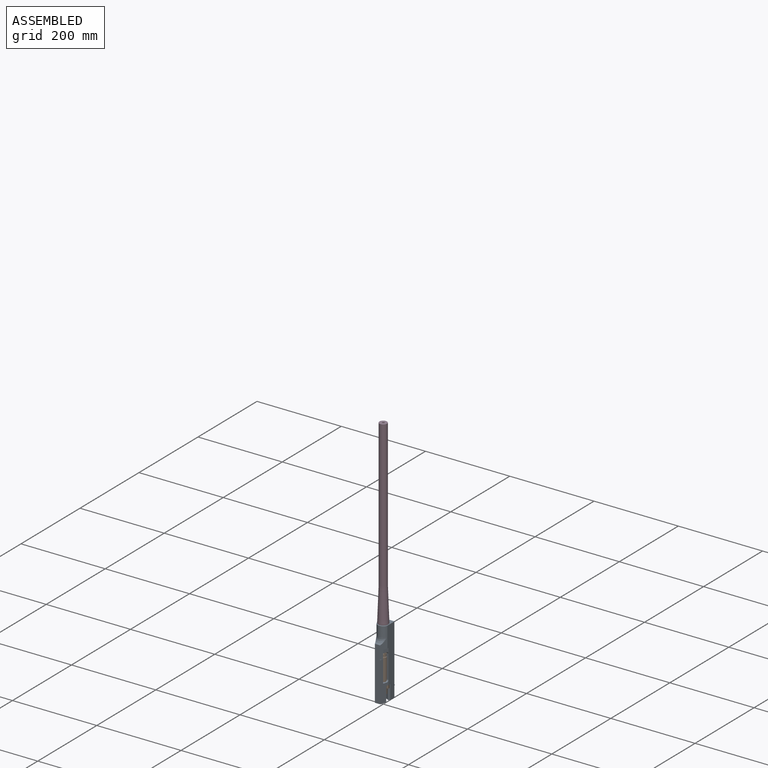
[diagram: assembled view]
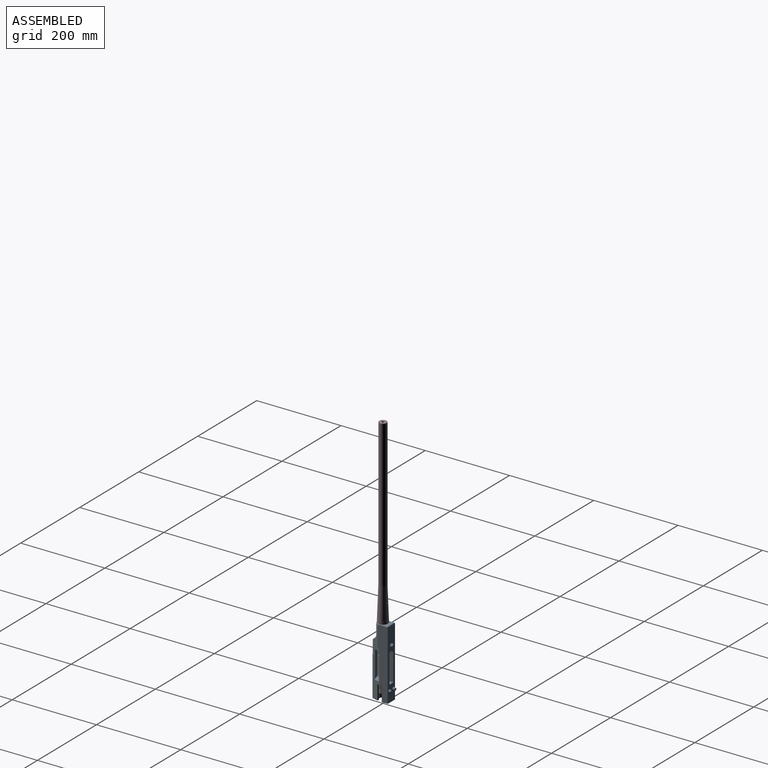
[diagram: assembled view, second angle]
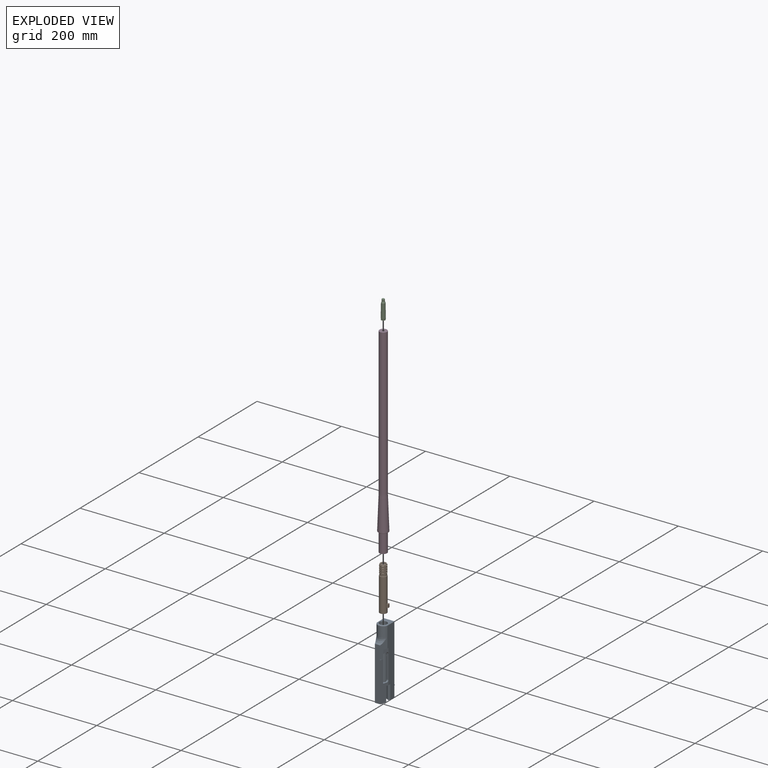
[diagram: exploded view]
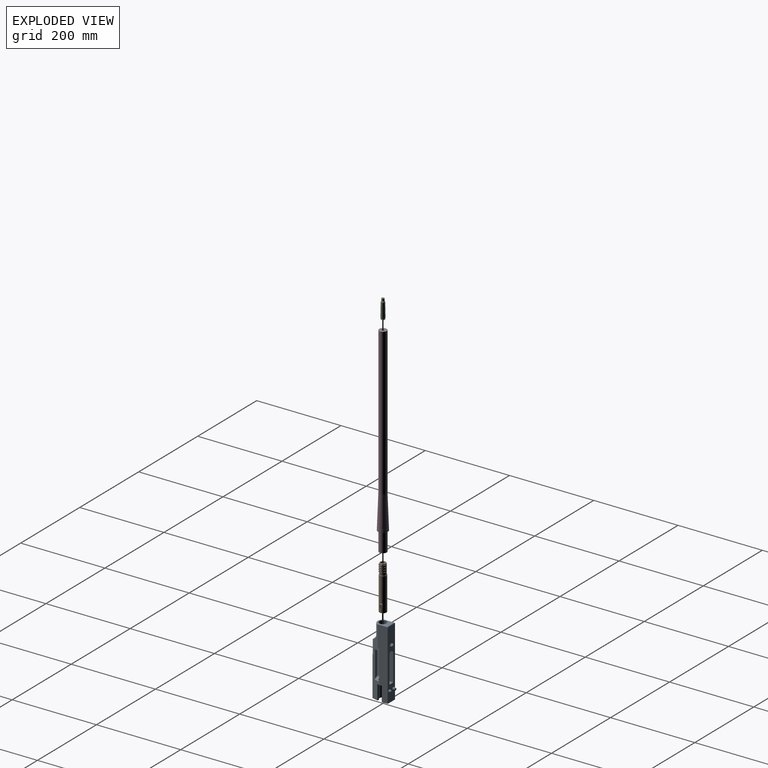
[diagram: exploded view, second angle]
ASSEMBLY  parts=4 mates=3
PART A: 166 faces, bbox 56.1x166.9x55.5 mm
  f0: cylinder r=7.5mm len=4mm, axis (0,-1,0), area 7.6mm2, adj f31,f55,f78,f121
  f1: cylinder r=7.5mm len=10.52mm, axis (0,-1,0), area 46.6mm2, adj f32,f56,f120,f124
  f2: cylinder r=7.5mm len=4mm, axis (0,-1,0), area 15.2mm2, adj f33,f57,f123,f127
  f3: cylinder r=7.5mm len=4mm, axis (0,-1,0), area 15.2mm2, adj f34,f58,f118,f126
  f4: cone r=8.7mm half-angle=60deg, axis (0,-1,0), area 4.7mm2, adj f9,f22,f64,f101,f138,f147
  f5: cone r=8.7mm half-angle=60deg, axis (0,-1,0), area 6.1mm2, adj f10,f100,f145,f146
  f6: cone r=8.7mm half-angle=60deg, axis (0,-1,0), area 6mm2, adj f11,f100,f106,f143
  f7: cone r=8.7mm half-angle=60deg, axis (0,-1,0), area 6.1mm2, adj f12,f100,f141,f142
  f8: cone r=8.7mm half-angle=60deg, axis (0,-1,0), area 6.1mm2, adj f61,f100,f139,f140
  f9: cylinder r=7.5mm len=3.26mm, axis (0,-1,0), area 7.6mm2, adj f4,f47,f138,f147
  f10: cylinder r=7.5mm len=3.76mm, axis (0,-1,0), area 7.6mm2, adj f5,f48,f145,f146
  f11: cylinder r=7.5mm len=10.52mm, axis (0,-1,0), area 19.6mm2, adj f6,f49,f60,f106,f107,f143,f144
  f12: cylinder r=7.5mm len=3.76mm, axis (0,-1,0), area 7.6mm2, adj f7,f50,f141,f142
  f13: cylinder r=7.5mm len=2.55mm, axis (0,-1,0), area 4.5mm2, adj f23,f27,f63,f163
  f14: cylinder r=7.5mm len=10.52mm, axis (0,-1,0), area 23.3mm2, adj f24,f28,f162,f164
  f15: cylinder r=7.5mm len=3.76mm, axis (0,-1,0), area 7.6mm2, adj f25,f29,f160,f161
  f16: cylinder r=7.5mm len=3.26mm, axis (0,-1,0), area 7.6mm2, adj f26,f30,f158,f159
  f17: cylinder r=7.5mm len=3.26mm, axis (0,-1,0), area 9.5mm2, adj f21,f39,f148,f157
  f18: cylinder r=7.5mm len=3.76mm, axis (0,-1,0), area 9.5mm2, adj f21,f40,f155,f156
  f19: cylinder r=7.5mm len=10.52mm, axis (0,-1,0), area 29.1mm2, adj f21,f41,f153,f154
  f20: cylinder r=7.5mm len=3.76mm, axis (0,-1,0), area 9.5mm2, adj f21,f42,f151,f152
  f21: plane 18x18mm, normal (0,1,0), area 53.5mm2, adj f17,f18,f19,f20,f62,f73,f100,f148
  f22: plane 10.69x8.81mm, normal (0,-1,0), area 58.7mm2, adj f4,f63,f64,f68,f75,f94,f100,f147
  f23: cone r=8.7mm half-angle=60deg, axis (0,1,0), area 4.3mm2, adj f13,f63,f100,f163
  f24: cone r=8.7mm half-angle=60deg, axis (0,1,0), area 17.9mm2, adj f14,f100,f162,f164
  f25: cone r=8.7mm half-angle=60deg, axis (0,1,0), area 6.1mm2, adj f15,f100,f160,f161
  f26: cone r=8.7mm half-angle=60deg, axis (0,1,0), area 6.1mm2, adj f16,f100,f158,f159
  f27: cone r=8.7mm half-angle=60deg, axis (0,-1,0), area 3.1mm2, adj f13,f63,f78,f100,f163
  f28: cone r=8.7mm half-angle=60deg, axis (0,-1,0), area 17.9mm2, adj f14,f100,f162,f164
  f29: cone r=8.7mm half-angle=60deg, axis (0,-1,0), area 6.1mm2, adj f15,f100,f160,f161
  f30: cone r=8.7mm half-angle=60deg, axis (0,-1,0), area 6.1mm2, adj f16,f100,f158,f159
  f31: cone r=8.7mm half-angle=60deg, axis (0,1,0), area 3.1mm2, adj f0,f78,f100,f121
  f32: cone r=8.7mm half-angle=60deg, axis (0,1,0), area 17.9mm2, adj f1,f100,f120,f124
  f33: cone r=8.7mm half-angle=60deg, axis (0,1,0), area 6.1mm2, adj f2,f100,f123,f127
  f34: cone r=8.7mm half-angle=60deg, axis (0,1,0), area 6.1mm2, adj f3,f100,f118,f126
  f35: cone r=8.7mm half-angle=60deg, axis (0,1,0), area 6.1mm2, adj f43,f100,f128,f137
  f36: cone r=8.7mm half-angle=60deg, axis (0,1,0), area 6.1mm2, adj f44,f100,f135,f136
  f37: cone r=8.7mm half-angle=60deg, axis (0,1,0), area 17.9mm2, adj f45,f100,f133,f134
  f38: cone r=8.7mm half-angle=60deg, axis (0,1,0), area 6.1mm2, adj f46,f100,f131,f132
  f39: cone r=8.7mm half-angle=60deg, axis (0,-1,0), area 6.1mm2, adj f17,f100,f148,f157
  f40: cone r=8.7mm half-angle=60deg, axis (0,-1,0), area 6.1mm2, adj f18,f100,f155,f156
  f41: cone r=8.7mm half-angle=60deg, axis (0,-1,0), area 17.9mm2, adj f19,f100,f153,f154
  f42: cone r=8.7mm half-angle=60deg, axis (0,-1,0), area 6.1mm2, adj f20,f100,f151,f152
  f43: cylinder r=7.5mm len=3.26mm, axis (0,-1,0), area 7.6mm2, adj f35,f51,f128,f137
  f44: cylinder r=7.5mm len=3.76mm, axis (0,-1,0), area 7.6mm2, adj f36,f52,f135,f136
  f45: cylinder r=7.5mm len=10.52mm, axis (0,-1,0), area 23.3mm2, adj f37,f53,f133,f134
  f46: cylinder r=7.5mm len=3.76mm, axis (0,-1,0), area 7.6mm2, adj f38,f54,f131,f132
  f47: cone r=8.7mm half-angle=60deg, axis (0,1,0), area 6.1mm2, adj f9,f100,f138,f147
  f48: cone r=8.7mm half-angle=60deg, axis (0,1,0), area 6.1mm2, adj f10,f100,f145,f146
  f49: cone r=8.7mm half-angle=60deg, axis (0,1,0), area 17.9mm2, adj f11,f100,f143,f144
  f50: cone r=8.7mm half-angle=60deg, axis (0,1,0), area 6.1mm2, adj f12,f100,f141,f142
  f51: cone r=8.7mm half-angle=60deg, axis (0,-1,0), area 6.1mm2, adj f43,f100,f128,f137
  f52: cone r=8.7mm half-angle=60deg, axis (0,-1,0), area 6.1mm2, adj f44,f100,f135,f136
  f53: cone r=8.7mm half-angle=60deg, axis (0,-1,0), area 17.9mm2, adj f45,f100,f133,f134
  f54: cone r=8.7mm half-angle=60deg, axis (0,-1,0), area 6.1mm2, adj f46,f100,f131,f132
  f55: plane 2.4x1.24mm, normal (0,-1,0), area 2.2mm2, adj f0,f59,f78,f121
  f56: plane 12.31x3.15mm, normal (0,-1,0), area 12.7mm2, adj f1,f59,f120,f124
  f57: plane 4.8x1.24mm, normal (0,-1,0), area 4.3mm2, adj f2,f59,f123,f127
  f58: plane 3.71x2.4mm, normal (0,-1,0), area 2mm2, adj f3,f118,f126,f165
  f59: cylinder r=8.5mm len=95.5mm, axis (0,-1,0), area 3975.4mm2, adj f55,f56,f57,f74,f76,f77,f78,f79
  f60: cone r=8.7mm half-angle=60deg, axis (0,-1,0), area 6mm2, adj f11,f100,f106,f144
  f61: cylinder r=7.5mm len=3.26mm, axis (0,-1,0), area 7.6mm2, adj f8,f104,f139,f140
  f62: cylinder r=7.5mm len=3.26mm, axis (0,-1,0), area 9.5mm2, adj f21,f102,f149,f150
  f63: cylinder r=5mm len=5.38mm, axis (-1,0,0), area 31.6mm2, adj f13,f22,f23,f27,f68,f78,f100
  f64: cylinder r=5mm len=9.88mm, axis (-0.17,0,0.98), area 57.8mm2, adj f4,f22,f75,f76,f100,f101
  f65: plane 128.45x14.93mm, normal (0,0,1), area 1611.7mm2, adj f67,f71,f94,f96,f98,f116
  f66: plane 31.09x23mm, normal (0,1,0), area 409.1mm2, adj f73,f108,f109,f110,f111,f112,f113
  f67: plane 95.58x20.58mm, normal (0.96,0,0.27), area 1053.6mm2, adj f65,f70,f74,f75,f77,f79,f92,f96
  f68: plane 13.58x12.97mm, normal (0.96,0,0.27), area 108.4mm2, adj f22,f63,f70,f94,f95
  f69: plane 164x25mm, normal (0,0,-1), area 3021.7mm2, adj f70,f72,f81,f83,f85,f87,f88,f89
  f70: plane 164x24mm, normal (1,0,0), area 3268.2mm2, adj f67,f68,f69,f74,f78,f80,f94,f95
  f71: plane 165.53x17.53mm, normal (-0.93,0,0.38), area 2298.4mm2, adj f65,f72,f97,f98,f113,f116
  f72: plane 164x24mm, normal (-1,0,0), area 3936mm2, adj f69,f71,f111,f116
  f73: cylinder r=9mm len=45mm, axis (0,1,0), area 2544.7mm2, adj f21,f66
  f74: plane 11.47x5.3mm, normal (0,-1,0), area 42.9mm2, adj f59,f67,f70,f79,f80
  f75: cylinder r=15.86mm len=65mm, axis (0,1,0), area 780.5mm2, adj f22,f64,f67,f76,f77,f93,f94,f96
  f76: plane 55x7.24mm, normal (0.98,0,0.17), area 403.2mm2, adj f59,f64,f75,f93,f100,f117
  f77: plane 10.69x8.81mm, normal (0,1,0), area 58.6mm2, adj f59,f67,f75,f92,f93
  f78: plane 55x5mm, normal (0,0,1), area 223.9mm2, adj f0,f27,f31,f55,f59,f63,f70,f92
  f79: plane 35x3.78mm, normal (0.26,0,-0.97), area 136.9mm2, adj f59,f67,f74,f116
  f80: plane 35x5.3mm, normal (0.26,0,0.97), area 192mm2, adj f59,f70,f74,f116
  f81: cone r=4mm half-angle=15deg, axis (0,0,1), area 108.3mm2, adj f69,f82
  f82: plane 5.32x5.32mm, normal (0,0,-1), area 22.2mm2, adj f81
  f83: cone r=4mm half-angle=15deg, axis (0,0,1), area 108.3mm2, adj f69,f84
  f84: plane 5.32x5.32mm, normal (0,0,-1), area 22.2mm2, adj f83
  f85: cone r=5mm half-angle=15deg, axis (0,0,1), area 140.8mm2, adj f69,f86
  f86: plane 7.32x7.32mm, normal (0,0,-1), area 42.1mm2, adj f85
  f87: plane 3.46x1.11mm, normal (0,-1,0), area 1.3mm2, adj f69,f106,f114,f115
  f88: plane 65x10mm, normal (-1,0,0), area 650mm2, adj f69,f89,f91,f114
  f89: plane 13x10mm, normal (0,1,0), area 130mm2, adj f69,f88,f90,f91
  f90: plane 65x10mm, normal (1,0,0), area 650mm2, adj f69,f89,f91,f115
  f91: plane 69.56x13.45mm, normal (0,0,-1), area 871.1mm2, adj f88,f89,f90,f106,f114,f115
  f92: cylinder r=5mm len=5.63mm, axis (1,0,0), area 32.4mm2, adj f59,f67,f77,f78
  f93: cylinder r=5mm len=9.71mm, axis (0.17,0,-0.98), area 61mm2, adj f59,f75,f76,f77
  f94: plane 70.53x17.53mm, normal (0.93,0,0.38), area 467.2mm2, adj f22,f65,f68,f70,f75,f95,f96,f97
  f95: plane 12.39x3.41mm, normal (0,-1,0), area 6.8mm2, adj f68,f70,f94
  f96: plane 6.87x2.89mm, normal (0,1,0), area 3.8mm2, adj f65,f67,f75,f94
  f97: cylinder r=13.09mm len=24.25mm, axis (0,1,0), area 744.3mm2, adj f71,f94,f98,f112
  f98: bspline ~54.18x25.13mm, area 366.9mm2, adj f65,f71,f94,f97
  f99: cone r=8.7mm half-angle=60deg, axis (0,1,0), area 6.1mm2, adj f100,f103,f129,f130
  f100: cylinder r=8.7mm len=25mm, axis (0,1,0), area 617mm2, adj f5,f6,f7,f8,f21,f22,f23,f24
  f101: cylinder r=8.7mm len=0.2mm, axis (0,1,0), area 0mm2, adj f4,f64,f100
  f102: cone r=8.7mm half-angle=60deg, axis (0,-1,0), area 6.1mm2, adj f62,f100,f149,f150
  f103: cylinder r=7.5mm len=3.26mm, axis (0,-1,0), area 7.6mm2, adj f99,f105,f129,f130
  f104: cone r=8.7mm half-angle=60deg, axis (0,1,0), area 6.1mm2, adj f61,f100,f139,f140
  f105: cone r=8.7mm half-angle=60deg, axis (0,-1,0), area 6.1mm2, adj f100,f103,f129,f130
  f106: cylinder r=5mm len=12.99mm, axis (0,0.71,0.71), area 169.7mm2, adj f6,f11,f60,f87,f91,f100,f107,f114
  f107: plane 10.93x7.49mm, normal (0,-0.71,-0.71), area 73.6mm2, adj f11,f106
  f108: plane 24x1mm, normal (0.71,0.71,0), area 33.1mm2, adj f66,f70,f109,f110
  f109: plane 25x1mm, normal (0,0.71,-0.71), area 33.9mm2, adj f66,f69,f108,f111
  f110: plane 1.3x1.12mm, normal (0.66,0.71,0.27), area 1.3mm2, adj f66,f94,f108,f112
  f111: plane 24x1mm, normal (-0.71,0.71,0), area 33.1mm2, adj f66,f72,f109,f113
  f112: cone r=12.09mm half-angle=45deg, axis (0,-1,0), area 42.2mm2, adj f66,f97,f110,f113
  f113: plane 1.3x1.12mm, normal (-0.66,0.71,0.27), area 1.3mm2, adj f66,f71,f111,f112
  f114: cylinder r=5mm len=10mm, axis (0,0,-1), area 49.2mm2, adj f69,f87,f88,f91,f106
  f115: cylinder r=5mm len=10mm, axis (0,0,1), area 49.2mm2, adj f69,f87,f90,f91,f106
  f116: plane 40x25mm, normal (0,-1,0), area 623.1mm2, adj f59,f65,f67,f69,f70,f71,f72,f79
  f117: plane 0.52x0.31mm, normal (0,1,0), area 0.1mm2, adj f59,f76,f100,f118
  f118: plane 5.22x1.26mm, normal (1,0,0), area 5.6mm2, adj f3,f34,f58,f100,f117,f165
  f119: plane 3.57x2.18mm, normal (0,1,0), area 0.8mm2, adj f59,f100,f120,f121
  f120: plane 5.22x1.1mm, normal (0.5,0,0.87), area 5.5mm2, adj f1,f32,f56,f59,f100,f119
  f121: plane 5.22x1.1mm, normal (-0.5,0,-0.87), area 5.5mm2, adj f0,f31,f55,f59,f100,f119
  f122: plane 3.57x2.18mm, normal (0,1,0), area 0.8mm2, adj f59,f100,f123,f124
  f123: plane 5.22x1.1mm, normal (0.5,0,-0.87), area 5.5mm2, adj f2,f33,f57,f59,f100,f122
  f124: plane 5.22x1.1mm, normal (-0.5,0,0.87), area 5.5mm2, adj f1,f32,f56,f59,f100,f122
  f125: plane 3.57x2.18mm, normal (0,1,0), area 0.8mm2, adj f59,f100,f126,f127
  f126: plane 5.22x1.1mm, normal (-0.5,0,-0.87), area 5.6mm2, adj f3,f34,f58,f100,f125,f165
  f127: plane 5.22x1.1mm, normal (0.5,0,0.87), area 5.5mm2, adj f2,f33,f57,f59,f100,f125
  f128: plane 3.41x1.26mm, normal (-1,0,0), area 3.3mm2, adj f35,f43,f51,f100
  f129: plane 3.41x1.26mm, normal (1,0,0), area 3.3mm2, adj f99,f100,f103,f105
  f130: plane 3.41x1.1mm, normal (-0.5,0,-0.87), area 3.3mm2, adj f99,f100,f103,f105
  f131: plane 3.41x1.1mm, normal (0.5,0,0.87), area 3.3mm2, adj f38,f46,f54,f100
  f132: plane 3.41x1.1mm, normal (0.5,0,-0.87), area 3.3mm2, adj f38,f46,f54,f100
  f133: plane 3.41x1.1mm, normal (-0.5,0,0.87), area 3.3mm2, adj f37,f45,f53,f100
  f134: plane 3.41x1.1mm, normal (0.5,0,0.87), area 3.3mm2, adj f37,f45,f53,f100
  f135: plane 3.41x1.1mm, normal (-0.5,0,-0.87), area 3.3mm2, adj f36,f44,f52,f100
  f136: plane 3.41x1.1mm, normal (-0.5,0,0.87), area 3.3mm2, adj f36,f44,f52,f100
  f137: plane 3.41x1.1mm, normal (0.5,0,-0.87), area 3.3mm2, adj f35,f43,f51,f100
  f138: plane 3.41x1.26mm, normal (-1,0,0), area 3.3mm2, adj f4,f9,f47,f100
  f139: plane 3.41x1.26mm, normal (1,0,0), area 3.3mm2, adj f8,f61,f100,f104
  f140: plane 3.41x1.1mm, normal (-0.5,0,-0.87), area 3.3mm2, adj f8,f61,f100,f104
  f141: plane 3.41x1.1mm, normal (0.5,0,0.87), area 3.3mm2, adj f7,f12,f50,f100
  f142: plane 3.41x1.1mm, normal (0.5,0,-0.87), area 3.3mm2, adj f7,f12,f50,f100
  f143: plane 3.41x1.1mm, normal (-0.5,0,0.87), area 3.3mm2, adj f6,f11,f49,f100
  f144: plane 3.41x1.1mm, normal (0.5,0,0.87), area 3.3mm2, adj f11,f49,f60,f100
  f145: plane 3.41x1.1mm, normal (-0.5,0,-0.87), area 3.3mm2, adj f5,f10,f48,f100
  f146: plane 3.41x1.1mm, normal (-0.5,0,0.87), area 3.3mm2, adj f5,f10,f48,f100
  f147: plane 3.22x1.1mm, normal (0.5,0,-0.87), area 3.3mm2, adj f4,f9,f22,f47,f100
  f148: plane 3.22x1.26mm, normal (-1,0,0), area 3.5mm2, adj f17,f21,f39,f100
  f149: plane 3.22x1.26mm, normal (1,0,0), area 3.5mm2, adj f21,f62,f100,f102
  f150: plane 3.22x1.1mm, normal (-0.5,0,-0.87), area 3.5mm2, adj f21,f62,f100,f102
  f151: plane 3.22x1.1mm, normal (0.5,0,0.87), area 3.5mm2, adj f20,f21,f42,f100
  f152: plane 3.22x1.1mm, normal (0.5,0,-0.87), area 3.5mm2, adj f20,f21,f42,f100
  f153: plane 3.22x1.1mm, normal (-0.5,0,0.87), area 3.5mm2, adj f19,f21,f41,f100
  f154: plane 3.22x1.1mm, normal (0.5,0,0.87), area 3.5mm2, adj f19,f21,f41,f100
  f155: plane 3.22x1.1mm, normal (-0.5,0,-0.87), area 3.5mm2, adj f18,f21,f40,f100
  f156: plane 3.22x1.1mm, normal (-0.5,0,0.87), area 3.5mm2, adj f18,f21,f40,f100
  f157: plane 3.22x1.1mm, normal (0.5,0,-0.87), area 3.5mm2, adj f17,f21,f39,f100
  f158: plane 3.41x1.26mm, normal (1,0,0), area 3.3mm2, adj f16,f26,f30,f100
  f159: plane 3.41x1.1mm, normal (-0.5,0,-0.87), area 3.3mm2, adj f16,f26,f30,f100
  f160: plane 3.41x1.1mm, normal (0.5,0,0.87), area 3.3mm2, adj f15,f25,f29,f100
  f161: plane 3.41x1.1mm, normal (0.5,0,-0.87), area 3.3mm2, adj f15,f25,f29,f100
  f162: plane 3.41x1.1mm, normal (-0.5,0,0.87), area 3.3mm2, adj f14,f24,f28,f100
  f163: plane 3.41x1.1mm, normal (-0.5,0,-0.87), area 3.3mm2, adj f13,f23,f27,f100
  f164: plane 3.41x1.1mm, normal (0.5,0,0.87), area 3.3mm2, adj f14,f24,f28,f100
  f165: cone r=8mm half-angle=45deg, axis (0,-1,0), area 3.3mm2, adj f58,f59,f118,f126
PART B: 120 faces, bbox 20.8x105x17 mm
  f0: cylinder r=0.75mm len=5.55mm, axis (0,-1,0), area 26.1mm2, adj f66,f118
  f1: cone r=0mm half-angle=59deg, axis (0,-1,0), area 58.6mm2, adj f117,f119
  f2: cylinder r=8.5mm len=79.5mm, axis (0,1,0), area 4205.3mm2, adj f109,f111,f112,f113,f114,f116
  f3: plane 3.02x0.91mm, normal (0.5,0,0.87), area 2.5mm2, adj f7,f64,f71,f106
  f4: plane 3.02x0.91mm, normal (0.5,0,0.87), area 2.5mm2, adj f8,f64,f104,f107
  f5: plane 3.02x0.91mm, normal (0.5,0,0.87), area 2.5mm2, adj f10,f64,f102,f103
  f6: plane 3.02x0.91mm, normal (0.5,0,0.87), area 2.5mm2, adj f9,f64,f101,f105
  f7: cylinder r=8.5mm len=3.29mm, axis (0,1,0), area 7.1mm2, adj f3,f11,f71,f106
  f8: cylinder r=8.5mm len=3.29mm, axis (0,1,0), area 7.1mm2, adj f4,f12,f104,f107
  f9: cylinder r=8.5mm len=3.29mm, axis (0,1,0), area 7.1mm2, adj f6,f14,f101,f105
  f10: cylinder r=8.5mm len=3.29mm, axis (0,1,0), area 7.1mm2, adj f5,f13,f102,f103
  f11: plane 3.02x0.91mm, normal (-0.5,0,-0.87), area 2.5mm2, adj f7,f64,f71,f106
  f12: plane 3.02x0.91mm, normal (-0.5,0,-0.87), area 2.5mm2, adj f8,f64,f104,f107
  f13: plane 3.02x0.91mm, normal (-0.5,0,-0.87), area 2.5mm2, adj f10,f64,f102,f103
  f14: plane 3.02x0.91mm, normal (-0.5,0,-0.87), area 2.5mm2, adj f9,f64,f101,f105
  f15: plane 3.02x0.91mm, normal (-0.5,0,0.87), area 2.5mm2, adj f19,f64,f72,f100
  f16: plane 3.02x0.91mm, normal (-0.5,0,0.87), area 2.5mm2, adj f20,f64,f98,f99
  f17: plane 3.02x0.91mm, normal (-0.5,0,0.87), area 2.5mm2, adj f22,f64,f94,f96
  f18: plane 3.02x0.91mm, normal (-0.5,0,0.87), area 2.5mm2, adj f21,f64,f95,f97
  f19: cylinder r=8.5mm len=3.29mm, axis (0,1,0), area 7.1mm2, adj f15,f23,f72,f100
  f20: cylinder r=8.5mm len=3.29mm, axis (0,1,0), area 7.1mm2, adj f16,f24,f98,f99
  f21: cylinder r=8.5mm len=3.29mm, axis (0,1,0), area 7.1mm2, adj f18,f26,f95,f97
  f22: cylinder r=8.5mm len=3.29mm, axis (0,1,0), area 7.1mm2, adj f17,f25,f94,f96
  f23: plane 3.02x0.91mm, normal (0.5,0,-0.87), area 2.5mm2, adj f19,f64,f72,f100
  f24: plane 3.02x0.91mm, normal (0.5,0,-0.87), area 2.5mm2, adj f20,f64,f98,f99
  f25: plane 3.02x0.91mm, normal (0.5,0,-0.87), area 2.5mm2, adj f22,f64,f94,f96
  f26: plane 3.02x0.91mm, normal (0.5,0,-0.87), area 2.5mm2, adj f21,f64,f95,f97
  f27: plane 3.02x0.91mm, normal (-0.5,0,-0.87), area 2.5mm2, adj f31,f64,f68,f93
  f28: plane 3.02x0.91mm, normal (-0.5,0,-0.87), area 2.5mm2, adj f32,f64,f91,f92
  f29: plane 3.02x0.91mm, normal (-0.5,0,-0.87), area 2.5mm2, adj f34,f64,f87,f89
  f30: plane 3.02x0.91mm, normal (-0.5,0,-0.87), area 2.5mm2, adj f33,f64,f88,f90
  f31: cylinder r=8.5mm len=3.29mm, axis (0,1,0), area 7.1mm2, adj f27,f35,f68,f93
  f32: cylinder r=8.5mm len=3.29mm, axis (0,1,0), area 7.1mm2, adj f28,f36,f91,f92
  f33: cylinder r=8.5mm len=3.29mm, axis (0,1,0), area 7.1mm2, adj f30,f38,f88,f90
  f34: cylinder r=8.5mm len=3.29mm, axis (0,1,0), area 7.1mm2, adj f29,f37,f87,f89
  f35: plane 3.02x0.91mm, normal (0.5,0,0.87), area 2.5mm2, adj f31,f64,f68,f93
  f36: plane 3.02x0.91mm, normal (0.5,0,0.87), area 2.5mm2, adj f32,f64,f91,f92
  f37: plane 3.02x0.91mm, normal (0.5,0,0.87), area 2.5mm2, adj f34,f64,f87,f89
  f38: plane 3.02x0.91mm, normal (0.5,0,0.87), area 2.5mm2, adj f33,f64,f88,f90
  f39: plane 3.02x0.91mm, normal (0.5,0,-0.87), area 2.5mm2, adj f43,f64,f69,f86
  f40: plane 3.02x0.91mm, normal (0.5,0,-0.87), area 2.5mm2, adj f44,f64,f84,f85
  f41: plane 3.02x0.91mm, normal (0.5,0,-0.87), area 2.5mm2, adj f46,f64,f80,f82
  f42: plane 3.02x0.91mm, normal (0.5,0,-0.87), area 2.5mm2, adj f45,f64,f81,f83
  f43: cylinder r=8.5mm len=3.29mm, axis (0,1,0), area 7.1mm2, adj f39,f47,f69,f86
  f44: cylinder r=8.5mm len=3.29mm, axis (0,1,0), area 7.1mm2, adj f40,f48,f84,f85
  f45: cylinder r=8.5mm len=3.29mm, axis (0,1,0), area 7.1mm2, adj f42,f50,f81,f83
  f46: cylinder r=8.5mm len=3.29mm, axis (0,1,0), area 7.1mm2, adj f41,f49,f80,f82
  f47: plane 3.02x0.91mm, normal (-0.5,0,0.87), area 2.5mm2, adj f43,f64,f69,f86
  f48: plane 3.02x0.91mm, normal (-0.5,0,0.87), area 2.5mm2, adj f44,f64,f84,f85
  f49: plane 3.02x0.91mm, normal (-0.5,0,0.87), area 2.5mm2, adj f46,f64,f80,f82
  f50: plane 3.02x0.91mm, normal (-0.5,0,0.87), area 2.5mm2, adj f45,f64,f81,f83
  f51: plane 3.02x1.05mm, normal (1,0,0), area 2.5mm2, adj f55,f64,f70,f79
  f52: plane 3.02x1.05mm, normal (1,0,0), area 2.5mm2, adj f56,f64,f77,f78
  f53: plane 3.02x1.05mm, normal (1,0,0), area 2.5mm2, adj f58,f64,f73,f75
  f54: plane 3.02x1.05mm, normal (1,0,0), area 2.5mm2, adj f57,f64,f74,f76
  f55: cylinder r=8.5mm len=3.8mm, axis (0,1,0), area 7.1mm2, adj f51,f59,f70,f79
  f56: cylinder r=8.5mm len=3.8mm, axis (0,1,0), area 7.1mm2, adj f52,f60,f77,f78
  f57: cylinder r=8.5mm len=3.8mm, axis (0,1,0), area 7.1mm2, adj f54,f62,f74,f76
  f58: cylinder r=8.5mm len=3.8mm, axis (0,1,0), area 7.1mm2, adj f53,f61,f73,f75
  f59: plane 3.02x1.05mm, normal (-1,0,0), area 2.5mm2, adj f55,f64,f70,f79
  f60: plane 3.02x1.05mm, normal (-1,0,0), area 2.5mm2, adj f56,f64,f77,f78
  f61: plane 3.02x1.05mm, normal (-1,0,0), area 2.5mm2, adj f58,f64,f73,f75
  f62: plane 3.02x1.05mm, normal (-1,0,0), area 2.5mm2, adj f57,f64,f74,f76
  f63: plane 14x14mm, normal (0,1,0), area 69.8mm2, adj f67,f108
  f64: cylinder r=7.5mm len=22.5mm, axis (0,1,0), area 829.8mm2, adj f3,f4,f5,f6,f11,f12,f13,f14
  f65: cylinder r=4.85mm len=9.7mm, axis (0,1,0), area 73.1mm2, adj f66,f67
  f66: plane 9.7x9.7mm, normal (0,1,0), area 72.1mm2, adj f0,f65
  f67: cone r=4.85mm half-angle=25deg, axis (0,1,0), area 24.3mm2, adj f63,f65
  f68: cone r=8.5mm half-angle=60deg, axis (0,1,0), area 4.4mm2, adj f27,f31,f35,f64
  f69: cone r=8.5mm half-angle=60deg, axis (0,1,0), area 4.4mm2, adj f39,f43,f47,f64
  f70: cone r=8.5mm half-angle=60deg, axis (0,1,0), area 4.4mm2, adj f51,f55,f59,f64
  f71: cone r=8.5mm half-angle=60deg, axis (0,1,0), area 4.4mm2, adj f3,f7,f11,f64
  f72: cone r=8.5mm half-angle=60deg, axis (0,1,0), area 4.4mm2, adj f15,f19,f23,f64
  f73: cone r=8.5mm half-angle=60deg, axis (0,1,0), area 4.4mm2, adj f53,f58,f61,f64
  f74: cone r=8.5mm half-angle=60deg, axis (0,-1,0), area 4.4mm2, adj f54,f57,f62,f64
  f75: cone r=8.5mm half-angle=60deg, axis (0,-1,0), area 4.4mm2, adj f53,f58,f61,f108
  f76: cone r=8.5mm half-angle=60deg, axis (0,1,0), area 4.4mm2, adj f54,f57,f62,f64
  f77: cone r=8.5mm half-angle=60deg, axis (0,-1,0), area 4.4mm2, adj f52,f56,f60,f64
  f78: cone r=8.5mm half-angle=60deg, axis (0,1,0), area 4.4mm2, adj f52,f56,f60,f64
  f79: cone r=8.5mm half-angle=60deg, axis (0,-1,0), area 4.4mm2, adj f51,f55,f59,f64
  f80: cone r=8.5mm half-angle=60deg, axis (0,1,0), area 4.4mm2, adj f41,f46,f49,f64
  f81: cone r=8.5mm half-angle=60deg, axis (0,-1,0), area 4.4mm2, adj f42,f45,f50,f64
  f82: cone r=8.5mm half-angle=60deg, axis (0,-1,0), area 4.4mm2, adj f41,f46,f49,f108
  f83: cone r=8.5mm half-angle=60deg, axis (0,1,0), area 4.4mm2, adj f42,f45,f50,f64
  f84: cone r=8.5mm half-angle=60deg, axis (0,-1,0), area 4.4mm2, adj f40,f44,f48,f64
  f85: cone r=8.5mm half-angle=60deg, axis (0,1,0), area 4.4mm2, adj f40,f44,f48,f64
  f86: cone r=8.5mm half-angle=60deg, axis (0,-1,0), area 4.4mm2, adj f39,f43,f47,f64
  f87: cone r=8.5mm half-angle=60deg, axis (0,1,0), area 4.4mm2, adj f29,f34,f37,f64
  f88: cone r=8.5mm half-angle=60deg, axis (0,-1,0), area 4.4mm2, adj f30,f33,f38,f64
  f89: cone r=8.5mm half-angle=60deg, axis (0,-1,0), area 4.4mm2, adj f29,f34,f37,f108
  f90: cone r=8.5mm half-angle=60deg, axis (0,1,0), area 4.4mm2, adj f30,f33,f38,f64
  f91: cone r=8.5mm half-angle=60deg, axis (0,-1,0), area 4.4mm2, adj f28,f32,f36,f64
  f92: cone r=8.5mm half-angle=60deg, axis (0,1,0), area 4.4mm2, adj f28,f32,f36,f64
  f93: cone r=8.5mm half-angle=60deg, axis (0,-1,0), area 4.4mm2, adj f27,f31,f35,f64
  f94: cone r=8.5mm half-angle=60deg, axis (0,1,0), area 4.4mm2, adj f17,f22,f25,f64
  f95: cone r=8.5mm half-angle=60deg, axis (0,-1,0), area 4.4mm2, adj f18,f21,f26,f64
  f96: cone r=8.5mm half-angle=60deg, axis (0,-1,0), area 4.4mm2, adj f17,f22,f25,f108
  f97: cone r=8.5mm half-angle=60deg, axis (0,1,0), area 4.4mm2, adj f18,f21,f26,f64
  f98: cone r=8.5mm half-angle=60deg, axis (0,-1,0), area 4.4mm2, adj f16,f20,f24,f64
  f99: cone r=8.5mm half-angle=60deg, axis (0,1,0), area 4.4mm2, adj f16,f20,f24,f64
  f100: cone r=8.5mm half-angle=60deg, axis (0,-1,0), area 4.4mm2, adj f15,f19,f23,f64
  f101: cone r=8.5mm half-angle=60deg, axis (0,-1,0), area 4.4mm2, adj f6,f9,f14,f64
  f102: cone r=8.5mm half-angle=60deg, axis (0,1,0), area 4.4mm2, adj f5,f10,f13,f64
  f103: cone r=8.5mm half-angle=60deg, axis (0,-1,0), area 4.4mm2, adj f5,f10,f13,f108
  f104: cone r=8.5mm half-angle=60deg, axis (0,-1,0), area 4.4mm2, adj f4,f8,f12,f64
  f105: cone r=8.5mm half-angle=60deg, axis (0,1,0), area 4.4mm2, adj f6,f9,f14,f64
  f106: cone r=8.5mm half-angle=60deg, axis (0,-1,0), area 4.4mm2, adj f3,f7,f11,f64
  f107: cone r=8.5mm half-angle=60deg, axis (0,1,0), area 4.4mm2, adj f4,f8,f12,f64
  f108: cone r=7.5mm half-angle=11.3deg, axis (0,-1,0), area 116.1mm2, adj f63,f64,f75,f82,f89,f96,f103
  f109: plane 17x17mm, normal (0,-1,0), area 148.4mm2, adj f2,f117
  f110: plane 16x16mm, normal (0,1,0), area 24.3mm2, adj f64,f116
  f111: plane 8x3.78mm, normal (-0.26,0,0.97), area 31.3mm2, adj f2,f113,f114,f115
  f112: plane 8x3.78mm, normal (0.26,0,-0.97), area 31.3mm2, adj f2,f113,f114,f115
  f113: plane 5.84x5.07mm, normal (0,1,0), area 18.3mm2, adj f2,f111,f112,f115
  f114: plane 5.84x5.07mm, normal (0,-1,0), area 18.3mm2, adj f2,f111,f112,f115
  f115: plane 8x4.83mm, normal (0.97,0,0.26), area 40mm2, adj f111,f112,f113,f114
  f116: cone r=8.5mm half-angle=45deg, axis (0,-1,0), area 36.7mm2, adj f2,f110
  f117: cylinder r=5mm len=80mm, axis (0,-1,0), area 2513.3mm2, adj f1,f109
  f118: cone r=0mm half-angle=59deg, axis (0,-1,0), area 30.9mm2, adj f0,f119
  f119: cylinder r=3mm len=13.8mm, axis (0,-1,0), area 260.1mm2, adj f1,f118
PART C: 9 faces, bbox 10x44.7x10 mm
  f0: plane 9.6x9.6mm, normal (0,-1,0), area 72.4mm2, adj f1
  f1: cylinder r=4.8mm len=9.6mm, axis (0,1,0), area 34.4mm2, adj f0,f2
  f2: plane 9.6x9.6mm, normal (0,1,0), area 16.6mm2, adj f1,f3
  f3: cylinder r=4.21mm len=8.43mm, axis (0,1,0), area 20.1mm2, adj f2,f4
  f4: cone r=4.21mm half-angle=35deg, axis (0,1,0), area 38.8mm2, adj f3,f5
  f5: cone r=4.99mm half-angle=0.8deg, axis (0,-1,0), area 999mm2, adj f4,f6
  f6: cone r=4.5mm half-angle=23deg, axis (0,-1,0), area 79.8mm2, adj f5,f7
  f7: cylinder r=3.21mm len=6.43mm, axis (0,1,0), area 104mm2, adj f6,f8
  f8: plane 6.43x6.43mm, normal (0,1,0), area 32.4mm2, adj f7
PART D: 13 faces, bbox 82.3x475x82.3 mm
  f0: cylinder r=2.8mm len=433.3mm, axis (0,-1,0), area 7623mm2, adj f6,f9
  f1: cylinder r=9mm len=45mm, axis (0,-1,0), area 2544.7mm2, adj f2,f3
  f2: plane 18x18mm, normal (0,-1,0), area 176.4mm2, adj f1,f10
  f3: plane 23x23mm, normal (0,-1,0), area 161mm2, adj f1,f8
  f4: cone r=12mm half-angle=2.1deg, axis (0,-1,0), area 5137.5mm2, adj f7,f8
  f5: cylinder r=9mm len=348.13mm, axis (0,-1,0), area 19686mm2, adj f6,f7
  f6: plane 18x18mm, normal (0,1,0), area 229.8mm2, adj f0,f5
  f7: torus R=109mm, axis (0,1,0), area 212.5mm2, adj f4,f5
  f8: cone r=11.98mm half-angle=43.9deg, axis (0,1,0), area 51.2mm2, adj f3,f4
  f9: plane 6.43x6.43mm, normal (0,-1,0), area 7.8mm2, adj f0,f12
  f10: cone r=4.99mm half-angle=0.8deg, axis (0,-1,0), area 999mm2, adj f2,f11
  f11: cone r=4.5mm half-angle=23deg, axis (0,-1,0), area 79.8mm2, adj f10,f12
  f12: cylinder r=3.21mm len=6.43mm, axis (0,1,0), area 104mm2, adj f9,f11
PLACE A rot(axis=(1,0,0),90deg) t=(0,0,15)mm
PLACE B rot(axis=(0.94,0.25,0.25),93.8deg) t=(0,0,15)mm
PLACE C rot(axis=(1,0,0),90deg) t=(0,0,15)mm
PLACE D rot(axis=(1,0,0),90deg) t=(0,0,15)mm
MATE fastened C.f1 <-> D.f10  axis (0,0,1) through (0,0,120)mm
MATE cylindrical A.f59 <-> B.f1  axis (0,0,-1) through (0,0,0)mm
MATE fastened D.f1 <-> A.f73  axis (0,0,-1) through (0,0,142.5)mm
